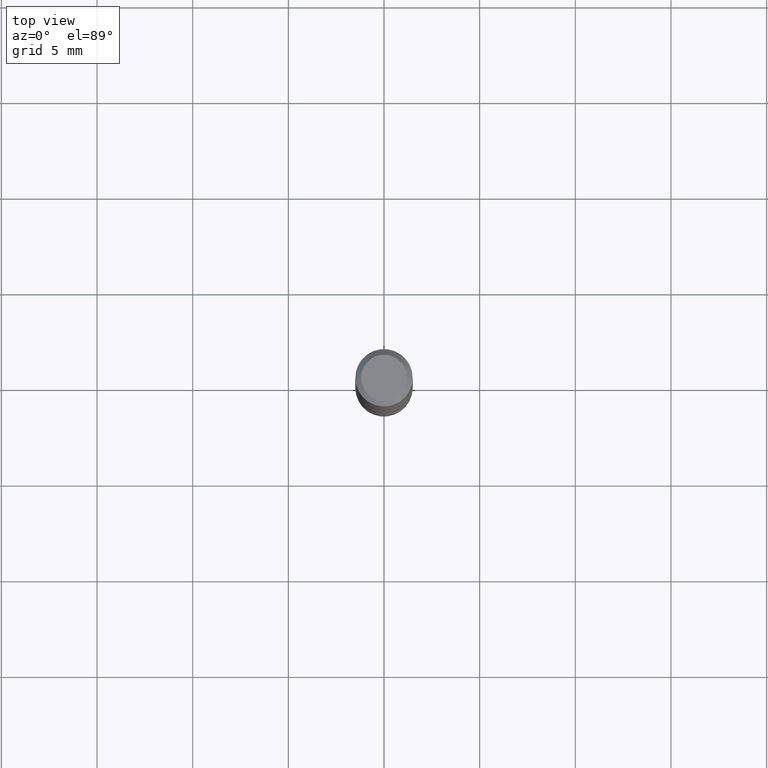
[diagram: clean part render]
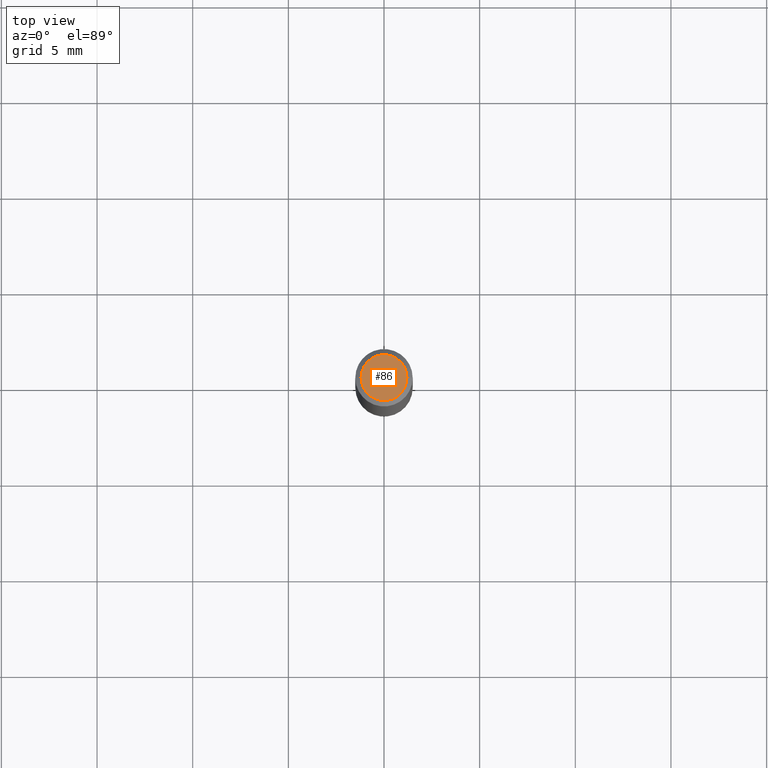
[diagram: same view with one face highlighted and labeled with its STEP entity id]
A machine part, top view. The second image highlights one B-rep face of the part: STEP entity #86.
In plain terms, the highlighted planar face has unit normal (0, -0, -1).
Its self-contained STEP definition (entity closure, byte-faithful):
#1 = VERTEX_POINT ( 'NONE', #402 ) ;
#11 = EDGE_CURVE ( 'NONE', #1, #380, #235, .T. ) ;
#13 = AXIS2_PLACEMENT_3D ( 'NONE', #444, #54, #204 ) ;
#23 = AXIS2_PLACEMENT_3D ( 'NONE', #370, #132, #475 ) ;
#40 = EDGE_CURVE ( 'NONE', #380, #1, #422, .T. ) ;
#54 = DIRECTION ( 'NONE',  ( 2.438088387897960049E-29, -3.491481338843145188E-15, -1.000000000000000000 ) ) ;
#60 = ORIENTED_EDGE ( 'NONE', *, *, #40, .T. ) ;
#61 = DIRECTION ( 'NONE',  ( -2.445468806185136597E-29, 3.491481338843145583E-15, 1.000000000000000000 ) ) ;
#79 = CARTESIAN_POINT ( 'NONE',  ( -0.04724000000000000421, 3.504923541997677355E-16, -3.380025165670481712E-19 ) ) ;
#86 = ADVANCED_FACE ( 'NONE', ( #482 ), #139, .F. ) ;
#97 = ORIENTED_EDGE ( 'NONE', *, *, #11, .T. ) ;
#132 = DIRECTION ( 'NONE',  ( -2.445468806185136597E-29, 3.491481338843145583E-15, 1.000000000000000000 ) ) ;
#135 = CARTESIAN_POINT ( 'NONE',  ( 8.265746106709734507E-48, -1.180129479067563789E-33, -3.380025165646692144E-19 ) ) ;
#139 = PLANE ( 'NONE',  #13 ) ;
#169 = EDGE_LOOP ( 'NONE', ( #60, #97 ) ) ;
#204 = DIRECTION ( 'NONE',  ( -1.000000000000000000, 6.982962677686265922E-15, -4.876176775795935793E-29 ) ) ;
#232 = AXIS2_PLACEMENT_3D ( 'NONE', #135, #61, #250 ) ;
#235 = CIRCLE ( 'NONE', #23, 0.04724000000000000421 ) ;
#250 = DIRECTION ( 'NONE',  ( 1.000000000000000000, -6.982962677686266711E-15, 4.876185090822587894E-29 ) ) ;
#370 = CARTESIAN_POINT ( 'NONE',  ( 8.265746106709734507E-48, -1.180129479067563789E-33, -3.380025165646692144E-19 ) ) ;
#380 = VERTEX_POINT ( 'NONE', #79 ) ;
#402 = CARTESIAN_POINT ( 'NONE',  ( 0.04724000000000000421, -3.852183633974369345E-16, -3.380025165621689721E-19 ) ) ;
#422 = CIRCLE ( 'NONE', #232, 0.04724000000000000421 ) ;
#444 = CARTESIAN_POINT ( 'NONE',  ( 4.132873053354867254E-48, -5.900647395337818946E-34, -1.690012582823346072E-19 ) ) ;
#475 = DIRECTION ( 'NONE',  ( 1.000000000000000000, -6.982962677686266711E-15, 4.876185090822587894E-29 ) ) ;
#482 = FACE_OUTER_BOUND ( 'NONE', #169, .T. ) ;